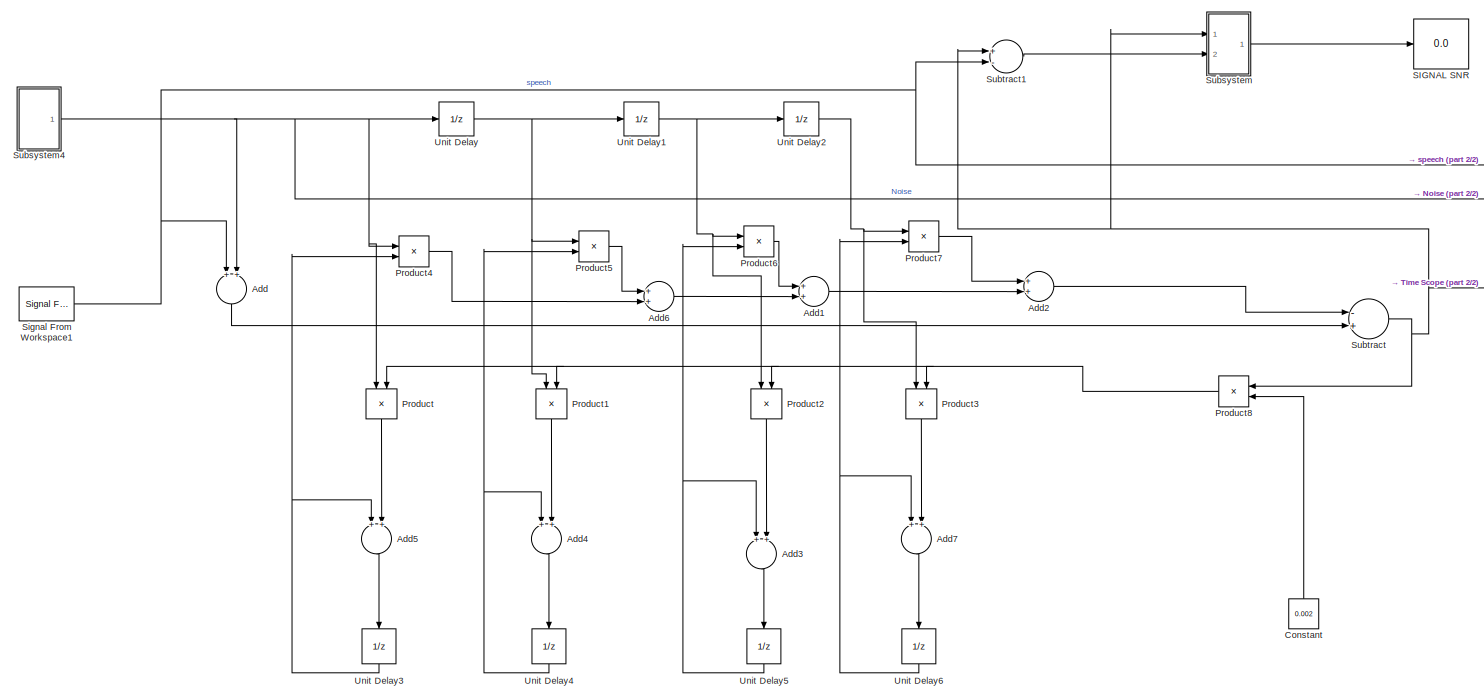
[diagram: root canvas - part 1/2, most of the canvas]
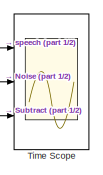
[diagram: root canvas - part 2/2, top right region]
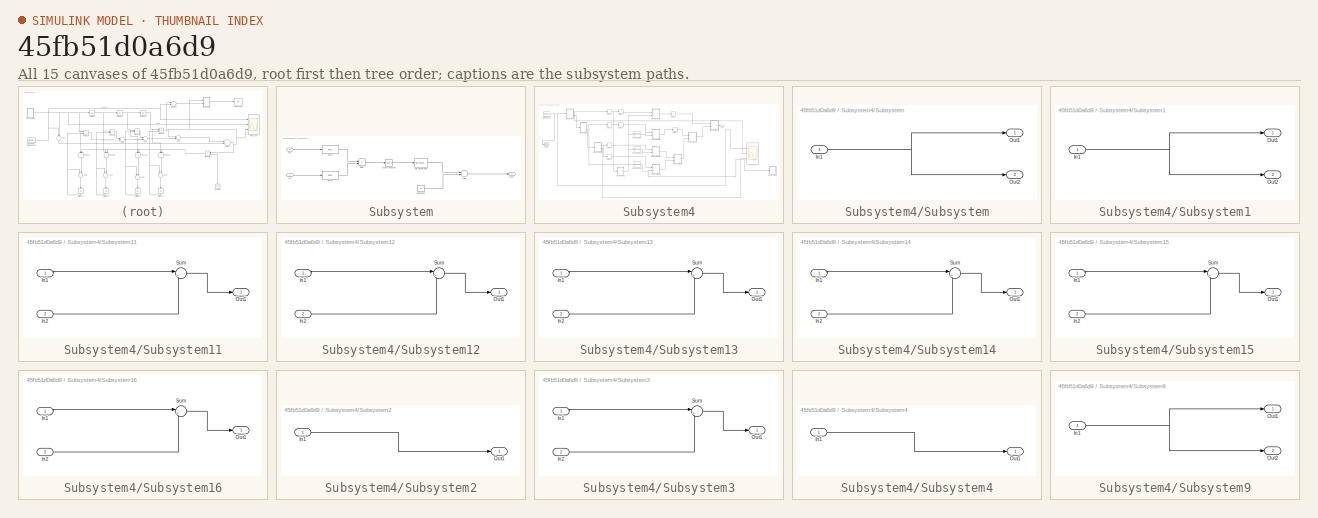
[diagram: thumbnail index - all 15 canvases of the model, root first then tree order]
MODEL slx_45fb51d0a6d9
KIND model
CONFIG AbsTol = auto
CONFIG FixedStep = auto
CONFIG MaxStep = 1.0
CONFIG MinStep = auto
CONFIG RelTol = 1e-3
CONFIG SampleTimeConstraint = Unconstrained
CONFIG Solver = VariableStepDiscrete
CONFIG SolverMode = Auto
CONFIG SolverName = VariableStepDiscrete
CONFIG StartTime = 0.0
CONFIG StopTime = 3000
BLOCK [Sum] Add
  InputSameDT = off
  OutDataTypeStr = Inherit: Inherit via internal rule
  Ports = [2, 1]
  SaturateOnIntegerOverflow = off
BLOCK [Sum] Add1
  InputSameDT = off
  OutDataTypeStr = Inherit: Inherit via internal rule
  Ports = [2, 1]
  SaturateOnIntegerOverflow = off
BLOCK [Sum] Add2
  InputSameDT = off
  OutDataTypeStr = Inherit: Inherit via internal rule
  Ports = [2, 1]
  SaturateOnIntegerOverflow = off
BLOCK [Sum] Add3
  InputSameDT = off
  OutDataTypeStr = Inherit: Inherit via internal rule
  Ports = [2, 1]
  SaturateOnIntegerOverflow = off
BLOCK [Sum] Add4
  InputSameDT = off
  OutDataTypeStr = Inherit: Inherit via internal rule
  Ports = [2, 1]
  SaturateOnIntegerOverflow = off
BLOCK [Sum] Add5
  InputSameDT = off
  OutDataTypeStr = Inherit: Inherit via internal rule
  Ports = [2, 1]
  SaturateOnIntegerOverflow = off
BLOCK [Sum] Add6
  InputSameDT = off
  OutDataTypeStr = Inherit: Inherit via internal rule
  Ports = [2, 1]
  SaturateOnIntegerOverflow = off
BLOCK [Sum] Add7
  InputSameDT = off
  OutDataTypeStr = Inherit: Inherit via internal rule
  Ports = [2, 1]
  SaturateOnIntegerOverflow = off
BLOCK [Constant] Constant
  Value = 0.002
BLOCK [Product] Product
  InputSameDT = off
  OutDataTypeStr = Inherit: Inherit via internal rule
  Ports = [2, 1]
  RndMeth = Floor
  SaturateOnIntegerOverflow = off
BLOCK [Product] Product1
  InputSameDT = off
  OutDataTypeStr = Inherit: Inherit via internal rule
  Ports = [2, 1]
  RndMeth = Floor
  SaturateOnIntegerOverflow = off
BLOCK [Product] Product2
  InputSameDT = off
  OutDataTypeStr = Inherit: Inherit via internal rule
  Ports = [2, 1]
  RndMeth = Floor
  SaturateOnIntegerOverflow = off
BLOCK [Product] Product3
  InputSameDT = off
  OutDataTypeStr = Inherit: Inherit via internal rule
  Ports = [2, 1]
  RndMeth = Floor
  SaturateOnIntegerOverflow = off
BLOCK [Product] Product4
  InputSameDT = off
  OutDataTypeStr = Inherit: Inherit via internal rule
  Ports = [2, 1]
  RndMeth = Floor
  SaturateOnIntegerOverflow = off
BLOCK [Product] Product5
  InputSameDT = off
  OutDataTypeStr = Inherit: Inherit via internal rule
  Ports = [2, 1]
  RndMeth = Floor
  SaturateOnIntegerOverflow = off
BLOCK [Product] Product6
  InputSameDT = off
  OutDataTypeStr = Inherit: Inherit via internal rule
  Ports = [2, 1]
  RndMeth = Floor
  SaturateOnIntegerOverflow = off
BLOCK [Product] Product7
  InputSameDT = off
  OutDataTypeStr = Inherit: Inherit via internal rule
  Ports = [2, 1]
  RndMeth = Floor
  SaturateOnIntegerOverflow = off
BLOCK [Product] Product8
  InputSameDT = off
  OutDataTypeStr = Inherit: Inherit via internal rule
  Ports = [2, 1]
  RndMeth = Floor
  SaturateOnIntegerOverflow = off
BLOCK [Display] SIGNAL SNR 
  Decimation = 1
  Ports = [1]
BLOCK [Reference] Signal From Workspace1  REF=dspsrcs4/Signal From
Workspace
  Ports = [0, 1]
  SourceBlock = dspsrcs4/Signal From\nWorkspace
  SourceType = Signal From Workspace
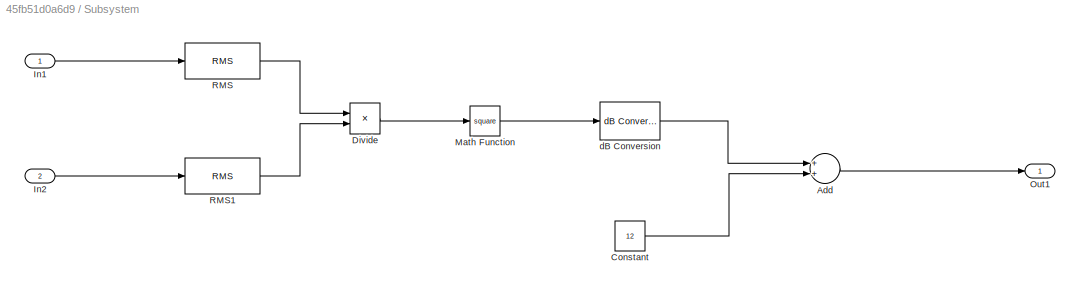
BLOCK [SubSystem] Subsystem
  Ports = [2, 1]
  RequestExecContextInheritance = off
  Variant = off
BLOCK [Sum] Subsystem/Add
  InputSameDT = off
  OutDataTypeStr = Inherit: Inherit via internal rule
  Ports = [2, 1]
  SaturateOnIntegerOverflow = off
BLOCK [Constant] Subsystem/Constant
  Value = 12
BLOCK [Product] Subsystem/Divide
  InputSameDT = off
  Inputs = */
  OutDataTypeStr = Inherit: Inherit via internal rule
  Ports = [2, 1]
  RndMeth = Floor
  SaturateOnIntegerOverflow = off
BLOCK [Inport] Subsystem/In1
  IconDisplay = Port number
  VarSizeSig = No
BLOCK [Inport] Subsystem/In2
  IconDisplay = Port number
  Port = 2
BLOCK [Math] Subsystem/Math Function
  Operator = square
  OutputSignalType = real
  Ports = [1, 1]
BLOCK [Outport] Subsystem/Out1
  IconDisplay = Port number
BLOCK [Reference] Subsystem/RMS  REF=dspstat3/RMS
  Ports = [1, 1]
  SourceBlock = dspstat3/RMS
  SourceType = RMS
  UserDataPersistent = on
BLOCK [Reference] Subsystem/RMS1  REF=dspstat3/RMS
  Ports = [1, 1]
  SourceBlock = dspstat3/RMS
  SourceType = RMS
  UserDataPersistent = on
BLOCK [Reference] Subsystem/dB Conversion  REF=dspmathops/dB Conversion
  Ports = [1, 1]
  SourceBlock = dspmathops/dB Conversion
  SourceType = dB Conversion
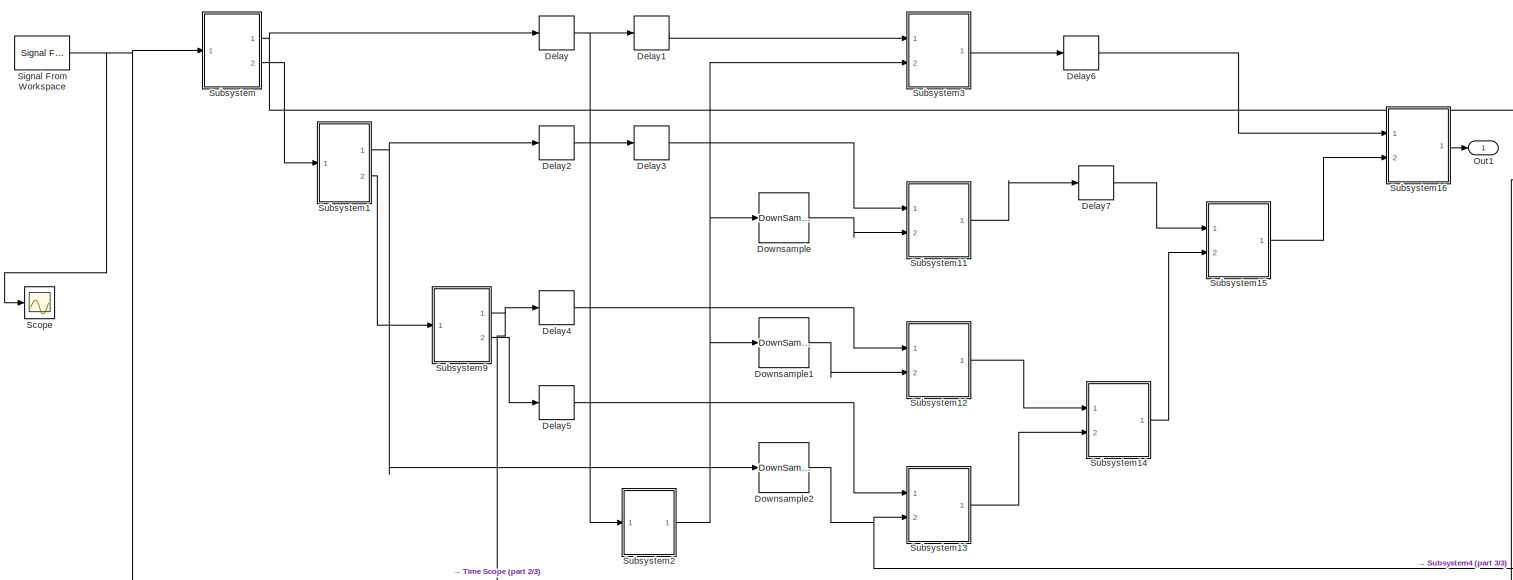
[diagram: Subsystem4 - part 1/3, most of the canvas]
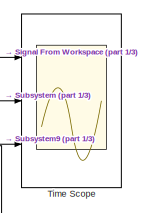
[diagram: Subsystem4 - part 2/3, middle right region]
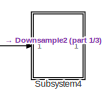
[diagram: Subsystem4 - part 3/3, bottom right region]
BLOCK [SubSystem] Subsystem4
  Ports = [0, 1]
  RequestExecContextInheritance = off
  Variant = off
BLOCK [Delay] Subsystem4/Delay
  DelayLength = 24
  InitialCondition = 0
  InputPortMap = u0
  Ports = [1, 1]
BLOCK [Delay] Subsystem4/Delay1
  DelayLength = 16
  InitialCondition = 0
  InputPortMap = u0
  Ports = [1, 1]
BLOCK [Delay] Subsystem4/Delay2
  DelayLength = 8
  InitialCondition = 0
  InputPortMap = u0
  Ports = [1, 1]
BLOCK [Delay] Subsystem4/Delay3
  DelayLength = 8
  InitialCondition = 0
  InputPortMap = u0
  Ports = [1, 1]
BLOCK [Delay] Subsystem4/Delay4
  DelayLength = 4
  InitialCondition = 0
  InputPortMap = u0
  Ports = [1, 1]
BLOCK [Delay] Subsystem4/Delay5
  DelayLength = 4
  InitialCondition = 0
  InputPortMap = u0
  Ports = [1, 1]
BLOCK [Delay] Subsystem4/Delay6
  DelayLength = 24
  InitialCondition = 0
  InputPortMap = u0
  Ports = [1, 1]
BLOCK [Delay] Subsystem4/Delay7
  DelayLength = 8
  InitialCondition = 0
  InputPortMap = u0
  Ports = [1, 1]
BLOCK [DownSample] Subsystem4/Downsample
  InputProcessing = Elements as channels (sample based)
  RateOptions = Allow multirate processing
  ic = -1
BLOCK [DownSample] Subsystem4/Downsample1
  InputProcessing = Elements as channels (sample based)
  N = 4
  RateOptions = Allow multirate processing
  ic = -1
BLOCK [DownSample] Subsystem4/Downsample2
  InputProcessing = Elements as channels (sample based)
  N = 8
  ic = -1
  phase = 1
BLOCK [Outport] Subsystem4/Out1
  IconDisplay = Port number
BLOCK [Scope] Subsystem4/Scope
  Ports = [1]
  ScopeSpecificationString = Simulink.scopes.TimeScopeBlockCfg('CurrentConfiguration', extmgr.ConfigurationSet(extmgr.Configuration('Core','General UI',true),extmgr.Configuration('Core','Source UI',true),extmgr.Configuration('Sources','WiredSimulink',true,'DataLoggingLimitDataPoints',true,'DataLoggingSaveFormat','Array','DataLoggingDecimation','1','DataLoggingDecimateData',true),extmgr.Configuration('Visuals','Time Domain',tr...<+1493ch>
BLOCK [Reference] Subsystem4/Signal From Workspace  REF=dspsrcs4/Signal From
Workspace
  Ports = [0, 1]
  SourceBlock = dspsrcs4/Signal From\nWorkspace
  SourceType = Signal From Workspace
BLOCK [SubSystem] Subsystem4/Subsystem
  Ports = [1, 2]
  RequestExecContextInheritance = off
  Variant = off
BLOCK [Inport] Subsystem4/Subsystem/In1
  IconDisplay = Port number
BLOCK [Outport] Subsystem4/Subsystem/Out1
  IconDisplay = Port number
BLOCK [Outport] Subsystem4/Subsystem/Out2
  IconDisplay = Port number
  Port = 2
BLOCK [SubSystem] Subsystem4/Subsystem1
  Ports = [1, 2]
  RequestExecContextInheritance = off
  Variant = off
BLOCK [Inport] Subsystem4/Subsystem1/In1
  IconDisplay = Port number
BLOCK [Outport] Subsystem4/Subsystem1/Out1
  IconDisplay = Port number
BLOCK [Outport] Subsystem4/Subsystem1/Out2
  IconDisplay = Port number
  Port = 2
BLOCK [SubSystem] Subsystem4/Subsystem11
  Ports = [2, 1]
  RequestExecContextInheritance = off
  Variant = off
BLOCK [Inport] Subsystem4/Subsystem11/In1
  IconDisplay = Port number
BLOCK [Inport] Subsystem4/Subsystem11/In2
  IconDisplay = Port number
  Port = 2
BLOCK [Outport] Subsystem4/Subsystem11/Out1
  IconDisplay = Port number
BLOCK [Sum] Subsystem4/Subsystem11/Sum
  IconShape = round
  InputSameDT = off
  Inputs = |++
  OutDataTypeStr = Inherit: Inherit via internal rule
  Ports = [2, 1]
  SaturateOnIntegerOverflow = off
BLOCK [SubSystem] Subsystem4/Subsystem12
  Ports = [2, 1]
  RequestExecContextInheritance = off
  Variant = off
BLOCK [Inport] Subsystem4/Subsystem12/In1
  IconDisplay = Port number
BLOCK [Inport] Subsystem4/Subsystem12/In2
  IconDisplay = Port number
  Port = 2
BLOCK [Outport] Subsystem4/Subsystem12/Out1
  IconDisplay = Port number
BLOCK [Sum] Subsystem4/Subsystem12/Sum
  IconShape = round
  InputSameDT = off
  Inputs = |++
  OutDataTypeStr = Inherit: Inherit via internal rule
  Ports = [2, 1]
  SaturateOnIntegerOverflow = off
BLOCK [SubSystem] Subsystem4/Subsystem13
  Ports = [2, 1]
  RequestExecContextInheritance = off
  Variant = off
BLOCK [Inport] Subsystem4/Subsystem13/In1
  IconDisplay = Port number
BLOCK [Inport] Subsystem4/Subsystem13/In2
  IconDisplay = Port number
  Port = 2
BLOCK [Outport] Subsystem4/Subsystem13/Out1
  IconDisplay = Port number
BLOCK [Sum] Subsystem4/Subsystem13/Sum
  IconShape = round
  InputSameDT = off
  Inputs = |++
  OutDataTypeStr = Inherit: Inherit via internal rule
  Ports = [2, 1]
  SaturateOnIntegerOverflow = off
BLOCK [SubSystem] Subsystem4/Subsystem14
  Ports = [2, 1]
  RequestExecContextInheritance = off
  Variant = off
BLOCK [Inport] Subsystem4/Subsystem14/In1
  IconDisplay = Port number
BLOCK [Inport] Subsystem4/Subsystem14/In2
  IconDisplay = Port number
  Port = 2
BLOCK [Outport] Subsystem4/Subsystem14/Out1
  IconDisplay = Port number
BLOCK [Sum] Subsystem4/Subsystem14/Sum
  IconShape = round
  InputSameDT = off
  Inputs = |++
  OutDataTypeStr = Inherit: Inherit via internal rule
  Ports = [2, 1]
  SaturateOnIntegerOverflow = off
BLOCK [SubSystem] Subsystem4/Subsystem15
  Ports = [2, 1]
  RequestExecContextInheritance = off
  Variant = off
BLOCK [Inport] Subsystem4/Subsystem15/In1
  IconDisplay = Port number
BLOCK [Inport] Subsystem4/Subsystem15/In2
  IconDisplay = Port number
  Port = 2
BLOCK [Outport] Subsystem4/Subsystem15/Out1
  IconDisplay = Port number
BLOCK [Sum] Subsystem4/Subsystem15/Sum
  IconShape = round
  InputSameDT = off
  Inputs = |++
  OutDataTypeStr = Inherit: Inherit via internal rule
  Ports = [2, 1]
  SaturateOnIntegerOverflow = off
BLOCK [SubSystem] Subsystem4/Subsystem16
  Ports = [2, 1]
  RequestExecContextInheritance = off
  Variant = off
BLOCK [Inport] Subsystem4/Subsystem16/In1
  IconDisplay = Port number
BLOCK [Inport] Subsystem4/Subsystem16/In2
  IconDisplay = Port number
  Port = 2
BLOCK [Outport] Subsystem4/Subsystem16/Out1
  IconDisplay = Port number
BLOCK [Sum] Subsystem4/Subsystem16/Sum
  IconShape = round
  InputSameDT = off
  Inputs = |++
  OutDataTypeStr = Inherit: Inherit via internal rule
  Ports = [2, 1]
  SaturateOnIntegerOverflow = off
BLOCK [SubSystem] Subsystem4/Subsystem2
  Ports = [1, 1]
  RequestExecContextInheritance = off
  Variant = off
BLOCK [Inport] Subsystem4/Subsystem2/In1
  IconDisplay = Port number
BLOCK [Outport] Subsystem4/Subsystem2/Out1
  IconDisplay = Port number
BLOCK [SubSystem] Subsystem4/Subsystem3
  Ports = [2, 1]
  RequestExecContextInheritance = off
  Variant = off
BLOCK [Inport] Subsystem4/Subsystem3/In1
  IconDisplay = Port number
BLOCK [Inport] Subsystem4/Subsystem3/In2
  IconDisplay = Port number
  Port = 2
BLOCK [Outport] Subsystem4/Subsystem3/Out1
  IconDisplay = Port number
BLOCK [Sum] Subsystem4/Subsystem3/Sum
  IconShape = round
  InputSameDT = off
  Inputs = |++
  OutDataTypeStr = Inherit: Inherit via internal rule
  Ports = [2, 1]
  SaturateOnIntegerOverflow = off
BLOCK [SubSystem] Subsystem4/Subsystem4
  Ports = [1, 1]
  RequestExecContextInheritance = off
  Variant = off
BLOCK [Inport] Subsystem4/Subsystem4/In1
  IconDisplay = Port number
BLOCK [Outport] Subsystem4/Subsystem4/Out1
  IconDisplay = Port number
BLOCK [SubSystem] Subsystem4/Subsystem9
  Ports = [1, 2]
  RequestExecContextInheritance = off
  Variant = off
BLOCK [Inport] Subsystem4/Subsystem9/In1
  IconDisplay = Port number
BLOCK [Outport] Subsystem4/Subsystem9/Out1
  IconDisplay = Port number
BLOCK [Outport] Subsystem4/Subsystem9/Out2
  IconDisplay = Port number
  Port = 2
BLOCK [Scope] Subsystem4/Time Scope
  DefaultConfigurationName = spbscopes.TimeScopeBlockCfg
  NumInputPorts = 3
  Ports = [3]
  ScopeSpecificationString = spbscopes.TimeScopeBlockCfg('CurrentConfiguration', extmgr.ConfigurationSet(extmgr.Configuration('Core','General UI',true),extmgr.Configuration('Core','Source UI',true),extmgr.Configuration('Sources','WiredSimulink',true,'DataLoggingVariableName','ScopeData1'),extmgr.Configuration('Visuals','Time Domain',true,'DisplayLayoutDimensions',[3 1],'DisplayPropertyDefaults',struct('MinYLimReal','-1.94632'...<+2876ch>
  UserDataPersistent = on
BLOCK [Sum] Subtract
  InputSameDT = off
  Inputs = -+
  OutDataTypeStr = Inherit: Inherit via internal rule
  Ports = [2, 1]
  SaturateOnIntegerOverflow = off
BLOCK [Sum] Subtract1
  InputSameDT = off
  Inputs = +-
  OutDataTypeStr = Inherit: Inherit via internal rule
  Ports = [2, 1]
  SaturateOnIntegerOverflow = off
BLOCK [Scope] Time Scope
  DefaultConfigurationName = spbscopes.TimeScopeBlockCfg
  NumInputPorts = 3
  Ports = [3]
  ScopeSpecificationString = spbscopes.TimeScopeBlockCfg('CurrentConfiguration', extmgr.ConfigurationSet(extmgr.Configuration('Core','General UI',true),extmgr.Configuration('Core','Source UI',true),extmgr.Configuration('Sources','WiredSimulink',true),extmgr.Configuration('Visuals','Time Domain',true,'DisplayLayoutDimensions',[3 1],'DisplayPropertyDefaults',struct('YLabelReal','Amplitude','LegendVisibility','off','XGrid',true,...<+2715ch>
  UserDataPersistent = on
BLOCK [UnitDelay] Unit Delay
  InputProcessing = Elements as channels (sample based)
  SampleTime = -1
BLOCK [UnitDelay] Unit Delay1
  InputProcessing = Elements as channels (sample based)
  SampleTime = -1
BLOCK [UnitDelay] Unit Delay2
  InputProcessing = Elements as channels (sample based)
  SampleTime = -1
BLOCK [UnitDelay] Unit Delay3
  InputProcessing = Elements as channels (sample based)
  SampleTime = -1
BLOCK [UnitDelay] Unit Delay4
  InputProcessing = Elements as channels (sample based)
  SampleTime = -1
BLOCK [UnitDelay] Unit Delay5
  InputProcessing = Elements as channels (sample based)
  SampleTime = -1
BLOCK [UnitDelay] Unit Delay6
  InputProcessing = Elements as channels (sample based)
  SampleTime = -1
LINE Add1:1 -> Add2:2
LINE Add2:1 -> Subtract:1
LINE Add3:1 -> Unit Delay5:1
LINE Add4:1 -> Unit Delay4:1
LINE Add5:1 -> Unit Delay3:1
LINE Add6:1 -> Add1:2
LINE Add7:1 -> Unit Delay6:1
LINE Add:1 -> Subtract:2
LINE Constant:1 -> Product8:2
LINE Product1:1 -> Add4:2
LINE Product2:1 -> Add3:2
LINE Product3:1 -> Add7:2
LINE Product4:1 -> Add6:2
LINE Product5:1 -> Add6:1
LINE Product6:1 -> Add1:1
LINE Product7:1 -> Add2:1
NET Product8:1 -> Product1:2, Product2:2, Product3:2, Product:2
LINE Product:1 -> Add5:2
NET Signal From Workspace1:1 -> Add:1, Subtract1:2, Time Scope:1
LINE Subsystem/Add:1 -> Subsystem/Out1:1
LINE Subsystem/Constant:1 -> Subsystem/Add:2
LINE Subsystem/Divide:1 -> Subsystem/Math Function:1
LINE Subsystem/In1:1 -> Subsystem/RMS:1
LINE Subsystem/In2:1 -> Subsystem/RMS1:1
LINE Subsystem/Math Function:1 -> Subsystem/dB Conversion:1
LINE Subsystem/RMS1:1 -> Subsystem/Divide:2
LINE Subsystem/RMS:1 -> Subsystem/Divide:1
LINE Subsystem/dB Conversion:1 -> Subsystem/Add:1
LINE Subsystem4/Delay1:1 -> Subsystem4/Subsystem3:1
LINE Subsystem4/Delay2:1 -> Subsystem4/Delay3:1
LINE Subsystem4/Delay3:1 -> Subsystem4/Subsystem11:1
LINE Subsystem4/Delay4:1 -> Subsystem4/Subsystem12:1
LINE Subsystem4/Delay5:1 -> Subsystem4/Subsystem13:1
LINE Subsystem4/Delay6:1 -> Subsystem4/Subsystem16:1
LINE Subsystem4/Delay7:1 -> Subsystem4/Subsystem15:1
NET Subsystem4/Delay:1 -> Subsystem4/Delay1:1, Subsystem4/Subsystem2:1
LINE Subsystem4/Downsample1:1 -> Subsystem4/Subsystem12:2
NET Subsystem4/Downsample2:1 -> Subsystem4/Subsystem13:2, Subsystem4/Subsystem4:1
LINE Subsystem4/Downsample:1 -> Subsystem4/Subsystem11:2
NET Subsystem4/Signal From Workspace:1 -> Subsystem4/Scope:1, Subsystem4/Subsystem:1, Subsystem4/Time Scope:1
NET Subsystem4/Subsystem/In1:1 -> Subsystem4/Subsystem/Out1:1, Subsystem4/Subsystem/Out2:1
NET Subsystem4/Subsystem1/In1:1 -> Subsystem4/Subsystem1/Out1:1, Subsystem4/Subsystem1/Out2:1
LINE Subsystem4/Subsystem11/In1:1 -> Subsystem4/Subsystem11/Sum:1
LINE Subsystem4/Subsystem11/In2:1 -> Subsystem4/Subsystem11/Sum:2
LINE Subsystem4/Subsystem11/Sum:1 -> Subsystem4/Subsystem11/Out1:1
LINE Subsystem4/Subsystem11:1 -> Subsystem4/Delay7:1
LINE Subsystem4/Subsystem12/In1:1 -> Subsystem4/Subsystem12/Sum:1
LINE Subsystem4/Subsystem12/In2:1 -> Subsystem4/Subsystem12/Sum:2
LINE Subsystem4/Subsystem12/Sum:1 -> Subsystem4/Subsystem12/Out1:1
LINE Subsystem4/Subsystem12:1 -> Subsystem4/Subsystem14:1
LINE Subsystem4/Subsystem13/In1:1 -> Subsystem4/Subsystem13/Sum:1
LINE Subsystem4/Subsystem13/In2:1 -> Subsystem4/Subsystem13/Sum:2
LINE Subsystem4/Subsystem13/Sum:1 -> Subsystem4/Subsystem13/Out1:1
LINE Subsystem4/Subsystem13:1 -> Subsystem4/Subsystem14:2
LINE Subsystem4/Subsystem14/In1:1 -> Subsystem4/Subsystem14/Sum:1
LINE Subsystem4/Subsystem14/In2:1 -> Subsystem4/Subsystem14/Sum:2
LINE Subsystem4/Subsystem14/Sum:1 -> Subsystem4/Subsystem14/Out1:1
LINE Subsystem4/Subsystem14:1 -> Subsystem4/Subsystem15:2
LINE Subsystem4/Subsystem15/In1:1 -> Subsystem4/Subsystem15/Sum:1
LINE Subsystem4/Subsystem15/In2:1 -> Subsystem4/Subsystem15/Sum:2
LINE Subsystem4/Subsystem15/Sum:1 -> Subsystem4/Subsystem15/Out1:1
LINE Subsystem4/Subsystem15:1 -> Subsystem4/Subsystem16:2
LINE Subsystem4/Subsystem16/In1:1 -> Subsystem4/Subsystem16/Sum:1
LINE Subsystem4/Subsystem16/In2:1 -> Subsystem4/Subsystem16/Sum:2
LINE Subsystem4/Subsystem16/Sum:1 -> Subsystem4/Subsystem16/Out1:1
LINE Subsystem4/Subsystem16:1 -> Subsystem4/Out1:1
NET Subsystem4/Subsystem1:1 -> Subsystem4/Delay2:1, Subsystem4/Downsample2:1
LINE Subsystem4/Subsystem1:2 -> Subsystem4/Subsystem9:1
LINE Subsystem4/Subsystem2/In1:1 -> Subsystem4/Subsystem2/Out1:1
NET Subsystem4/Subsystem2:1 -> Subsystem4/Downsample1:1, Subsystem4/Downsample:1, Subsystem4/Subsystem3:2
LINE Subsystem4/Subsystem3/In1:1 -> Subsystem4/Subsystem3/Sum:1
LINE Subsystem4/Subsystem3/In2:1 -> Subsystem4/Subsystem3/Sum:2
LINE Subsystem4/Subsystem3/Sum:1 -> Subsystem4/Subsystem3/Out1:1
LINE Subsystem4/Subsystem3:1 -> Subsystem4/Delay6:1
LINE Subsystem4/Subsystem4/In1:1 -> Subsystem4/Subsystem4/Out1:1
NET Subsystem4/Subsystem9/In1:1 -> Subsystem4/Subsystem9/Out1:1, Subsystem4/Subsystem9/Out2:1
NET Subsystem4/Subsystem9:1 -> Subsystem4/Delay4:1, Subsystem4/Time Scope:3
LINE Subsystem4/Subsystem9:2 -> Subsystem4/Delay5:1
NET Subsystem4/Subsystem:1 -> Subsystem4/Delay:1, Subsystem4/Time Scope:2
LINE Subsystem4/Subsystem:2 -> Subsystem4/Subsystem1:1
NET Subsystem4:1 -> Add:2, Product4:1, Product:1, Time Scope:2, Unit Delay:1
LINE Subsystem:1 -> SIGNAL SNR :1
LINE Subtract1:1 -> Subsystem:2
NET Subtract:1 -> Product8:1, Subsystem:1, Subtract1:1, Time Scope:3
NET Unit Delay1:1 -> Product2:1, Product6:1, Unit Delay2:1
NET Unit Delay2:1 -> Product3:1, Product7:1
NET Unit Delay3:1 -> Add5:1, Product4:2
NET Unit Delay4:1 -> Add4:1, Product5:2
NET Unit Delay5:1 -> Add3:1, Product6:2
NET Unit Delay6:1 -> Add7:1, Product7:2
NET Unit Delay:1 -> Product1:1, Product5:1, Unit Delay1:1
note: NET lines group one-source signal fan-out (src -> all destinations, sorted); 1:1 wires keep LINE
